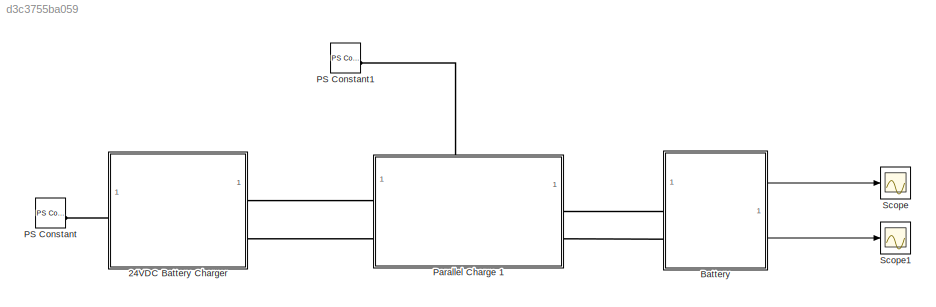
MODEL slx_d3c3755ba059
KIND model
CONFIG AbsTol = auto
CONFIG EnableMultiTasking = off
CONFIG FixedStep = auto
CONFIG MaxStep = auto
CONFIG MinStep = auto
CONFIG RelTol = 1e-3
CONFIG SampleTimeConstraint = Unconstrained
CONFIG SolverName = VariableStepAuto
CONFIG StartTime = 0.0
CONFIG StopTime = 10.0
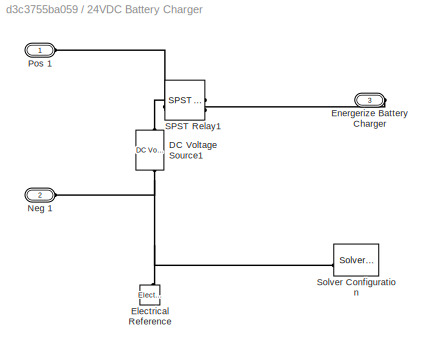
BLOCK [SubSystem] 24VDC Battery Charger
BLOCK [Reference] 24VDC Battery Charger/DC Voltage Source1  REF=fl_lib/Electrical/Electrical Sources/DC Voltage Source
  NameLocation = right
  SourceBlock = fl_lib/Electrical/Electrical Sources/DC Voltage Source
  SourceType = DC Voltage Source
BLOCK [Reference] 24VDC Battery Charger/Electrical Reference  REF=fl_lib/Electrical/Electrical Elements/Electrical Reference
  NameLocation = right
  SourceBlock = fl_lib/Electrical/Electrical Elements/Electrical Reference
  SourceType = Electrical Reference
BLOCK [PMIOPort] 24VDC Battery Charger/Energerize Battery Charger
  NameLocation = top
  Port = 3
  Side = Right
BLOCK [PMIOPort] 24VDC Battery Charger/Neg 1
  Port = 2
  Side = Left
BLOCK [PMIOPort] 24VDC Battery Charger/Pos 1
  Side = Left
BLOCK [Reference] 24VDC Battery Charger/SPST Relay1  REF=ee_lib/Switches & Breakers/Relays/SPST Relay
  NameLocation = top
  SourceBlock = ee_lib/Switches & Breakers/Relays/SPST Relay
  SourceType = SPST Relay
BLOCK [Reference] 24VDC Battery Charger/Solver Configuration  REF=nesl_utility/Solver
Configuration
  NameLocation = top
  SourceBlock = nesl_utility/Solver\nConfiguration
  SourceType = Solver\nConfiguration
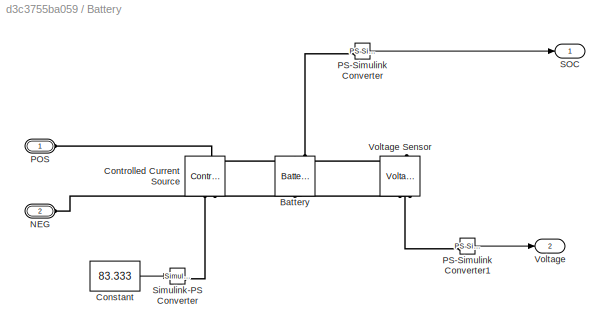
BLOCK [SubSystem] Battery
BLOCK [Reference] Battery/Battery  REF=batteryecm_lib/Battery
  NameLocation = right
  SourceBlock = batteryecm_lib/Battery
  SourceType = Battery
BLOCK [Constant] Battery/Constant
  Value = 83.333
BLOCK [Reference] Battery/Controlled Current Source  REF=fl_lib/Electrical/Electrical Sources/Controlled Current
Source
  NameLocation = right
  SourceBlock = fl_lib/Electrical/Electrical Sources/Controlled Current\nSource
  SourceType = Controlled Current\nSource
BLOCK [PMIOPort] Battery/NEG
  Port = 2
  Side = Left
BLOCK [PMIOPort] Battery/POS
  Side = Left
BLOCK [Reference] Battery/PS-Simulink Converter  REF=nesl_utility/PS-Simulink
Converter
  SourceBlock = nesl_utility/PS-Simulink\nConverter
  SourceType = PS-Simulink\nConverter
BLOCK [Reference] Battery/PS-Simulink Converter1  REF=nesl_utility/PS-Simulink
Converter
  SourceBlock = nesl_utility/PS-Simulink\nConverter
  SourceType = PS-Simulink\nConverter
BLOCK [Outport] Battery/SOC
BLOCK [Reference] Battery/Simulink-PS Converter  REF=nesl_utility/Simulink-PS
Converter
  SourceBlock = nesl_utility/Simulink-PS\nConverter
  SourceType = Simulink-PS\nConverter
BLOCK [Outport] Battery/Voltage
  Port = 2
BLOCK [Reference] Battery/Voltage Sensor  REF=fl_lib/Electrical/Electrical Sensors/Voltage Sensor
  NameLocation = left
  SourceBlock = fl_lib/Electrical/Electrical Sensors/Voltage Sensor
  SourceType = Voltage Sensor
BLOCK [Reference] PS Constant  REF=fl_lib/Physical Signals/Sources/PS Constant
  SourceBlock = fl_lib/Physical Signals/Sources/PS Constant
  SourceType = PS Constant
BLOCK [Reference] PS Constant1  REF=fl_lib/Physical Signals/Sources/PS Constant
  SourceBlock = fl_lib/Physical Signals/Sources/PS Constant
  SourceType = PS Constant
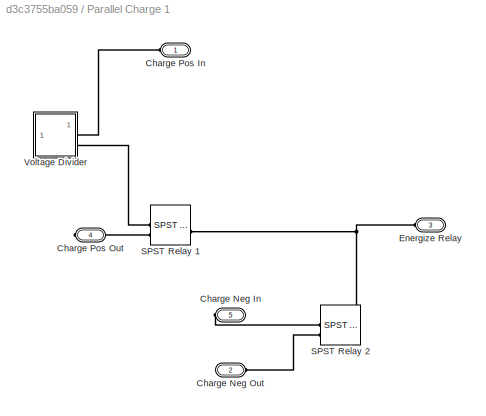
BLOCK [SubSystem] Parallel Charge 1
  PortSchema = {"entries":[{"content":{"sides":[{"content":{"connectorIds":["LConn1","LConn2"]},"type":"ConnectorPlacement.EquallySpacedRectSide","uuid":"92b66880-3ab5-48ec-aaf6-0b390f6e8e6c"},{"content":{"connectorIds":["RConn1","RConn2"],"side":"RIGHT"},"type":"ConnectorPlacement.EquallySpacedRectSide","uuid":"e85905ce-1804-41fb-a21c-30ce2b9855cf"},{"content":{"connectorIds":["LConn3"],"side":"TOP"},"type":"Co...<+271ch>
BLOCK [PMIOPort] Parallel Charge 1/Charge Neg In
  Port = 5
  Side = Right
BLOCK [PMIOPort] Parallel Charge 1/Charge Neg Out
  Port = 2
  Side = Left
BLOCK [PMIOPort] Parallel Charge 1/Charge Pos In
  NameLocation = top
  Side = Left
BLOCK [PMIOPort] Parallel Charge 1/Charge Pos Out
  Port = 4
  Side = Right
BLOCK [PMIOPort] Parallel Charge 1/Energize Relay
  NameLocation = top
  Port = 3
  Side = Left
BLOCK [Reference] Parallel Charge 1/SPST Relay 1  REF=ee_lib/Switches & Breakers/Relays/SPST Relay
  SourceBlock = ee_lib/Switches & Breakers/Relays/SPST Relay
  SourceType = SPST Relay
BLOCK [Reference] Parallel Charge 1/SPST Relay 2  REF=ee_lib/Switches & Breakers/Relays/SPST Relay
  SourceBlock = ee_lib/Switches & Breakers/Relays/SPST Relay
  SourceType = SPST Relay
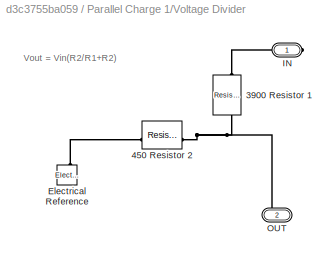
BLOCK [SubSystem] Parallel Charge 1/Voltage Divider
BLOCK [Reference] Parallel Charge 1/Voltage Divider/3900 Resistor 1  REF=ee_lib/Passive/Resistor
  NameLocation = right
  SourceBlock = ee_lib/Passive/Resistor
  SourceType = Resistor
BLOCK [Reference] Parallel Charge 1/Voltage Divider/450 Resistor 2  REF=ee_lib/Passive/Resistor
  SourceBlock = ee_lib/Passive/Resistor
  SourceType = Resistor
BLOCK [Reference] Parallel Charge 1/Voltage Divider/Electrical Reference  REF=fl_lib/Electrical/Electrical Elements/Electrical Reference
  NameLocation = right
  SourceBlock = fl_lib/Electrical/Electrical Elements/Electrical Reference
  SourceType = Electrical Reference
BLOCK [PMIOPort] Parallel Charge 1/Voltage Divider/IN
  Side = Right
BLOCK [PMIOPort] Parallel Charge 1/Voltage Divider/OUT
  Port = 2
  Side = Right
BLOCK [Scope] Scope
  Floating = off
  NumInputPorts = 1
  ScopeSpecificationString = Simulink.scopes.TimeScopeBlockCfg('CurrentConfiguration', extmgr.ConfigurationSet(extmgr.Configuration('Core','General UI',true),extmgr.Configuration('Core','Source UI',true),extmgr.Configuration('Sources','WiredSimulink',true),extmgr.Configuration('Visuals','Time Domain',true,'SerializedDisplays',{struct('MinYLimReal','179896.33993','MaxYLimReal','180932.94061','YLabelReal','','MinYLimMag','17989...<+1395ch>
BLOCK [Scope] Scope1
  Floating = off
  NumInputPorts = 1
  ScopeSpecificationString = Simulink.scopes.TimeScopeBlockCfg('CurrentConfiguration', extmgr.ConfigurationSet(extmgr.Configuration('Core','General UI',true),extmgr.Configuration('Core','Source UI',true),extmgr.Configuration('Sources','WiredSimulink',true,'DataLoggingVariableName','ScopeData1'),extmgr.Configuration('Visuals','Time Domain',true,'SerializedDisplays',{struct('MinYLimReal','165.865607','MaxYLimReal','165.865661',...<+1390ch>
ANNOTATION Parallel Charge 1/Voltage Divider: Vout = Vin(R2/R1+R2)
LINE Battery/Constant:1 -> Battery/Simulink-PS Converter:1
LINE Battery/PS-Simulink Converter1:1 -> Battery/Voltage:1
LINE Battery/PS-Simulink Converter:1 -> Battery/SOC:1
LINE Battery:1 -> Scope:1
LINE Battery:2 -> Scope1:1
PLINE 24VDC Battery Charger/DC Voltage Source1:LConn1 -- 24VDC Battery Charger/SPST Relay1:RConn1
PNET net1: 24VDC Battery Charger/DC Voltage Source1:RConn1 -- 24VDC Battery Charger/Electrical Reference:LConn1 -- 24VDC Battery Charger/Neg 1:RConn1 -- 24VDC Battery Charger/Solver Configuration:RConn1
PLINE 24VDC Battery Charger/Energerize Battery Charger:RConn1 -- 24VDC Battery Charger/SPST Relay1:LConn1
PLINE 24VDC Battery Charger/Pos 1:RConn1 -- 24VDC Battery Charger/SPST Relay1:RConn2
PLINE 24VDC Battery Charger:LConn1 -- Parallel Charge 1:LConn1
PLINE 24VDC Battery Charger:LConn2 -- Parallel Charge 1:LConn2
PLINE 24VDC Battery Charger:RConn1 -- PS Constant:RConn1
PNET net2: Battery/Battery:LConn1 -- Battery/Controlled Current Source:LConn1 -- Battery/POS:RConn1 -- Battery/Voltage Sensor:LConn1
PLINE Battery/Battery:LConn2 -- Battery/PS-Simulink Converter:LConn1
PNET net3: Battery/Battery:RConn1 -- Battery/Controlled Current Source:RConn2 -- Battery/NEG:RConn1 -- Battery/Voltage Sensor:RConn2
PLINE Battery/Controlled Current Source:RConn1 -- Battery/Simulink-PS Converter:RConn1
PLINE Battery/PS-Simulink Converter1:LConn1 -- Battery/Voltage Sensor:RConn1
PLINE Battery:LConn1 -- Parallel Charge 1:RConn1
PLINE Battery:LConn2 -- Parallel Charge 1:RConn2
PLINE PS Constant1:RConn1 -- Parallel Charge 1:LConn3
PLINE Parallel Charge 1/Charge Neg In:RConn1 -- Parallel Charge 1/SPST Relay 2:RConn1
PLINE Parallel Charge 1/Charge Neg Out:RConn1 -- Parallel Charge 1/SPST Relay 2:RConn2
PLINE Parallel Charge 1/Charge Pos In:RConn1 -- Parallel Charge 1/Voltage Divider:RConn1
PLINE Parallel Charge 1/Charge Pos Out:RConn1 -- Parallel Charge 1/SPST Relay 1:RConn2
PNET net4: Parallel Charge 1/Energize Relay:RConn1 -- Parallel Charge 1/SPST Relay 1:LConn1 -- Parallel Charge 1/SPST Relay 2:LConn1
PLINE Parallel Charge 1/SPST Relay 1:RConn1 -- Parallel Charge 1/Voltage Divider:RConn2
PNET net5: Parallel Charge 1/Voltage Divider/3900 Resistor 1:LConn1 -- Parallel Charge 1/Voltage Divider/450 Resistor 2:LConn1 -- Parallel Charge 1/Voltage Divider/OUT:RConn1
PLINE Parallel Charge 1/Voltage Divider/3900 Resistor 1:RConn1 -- Parallel Charge 1/Voltage Divider/IN:RConn1
PLINE Parallel Charge 1/Voltage Divider/450 Resistor 2:RConn1 -- Parallel Charge 1/Voltage Divider/Electrical Reference:LConn1
note: PNET lines group multi-terminal physical nets as a canonical sorted terminal list (undirected conserving connections); 2-terminal nets keep the pairwise PLINE form
